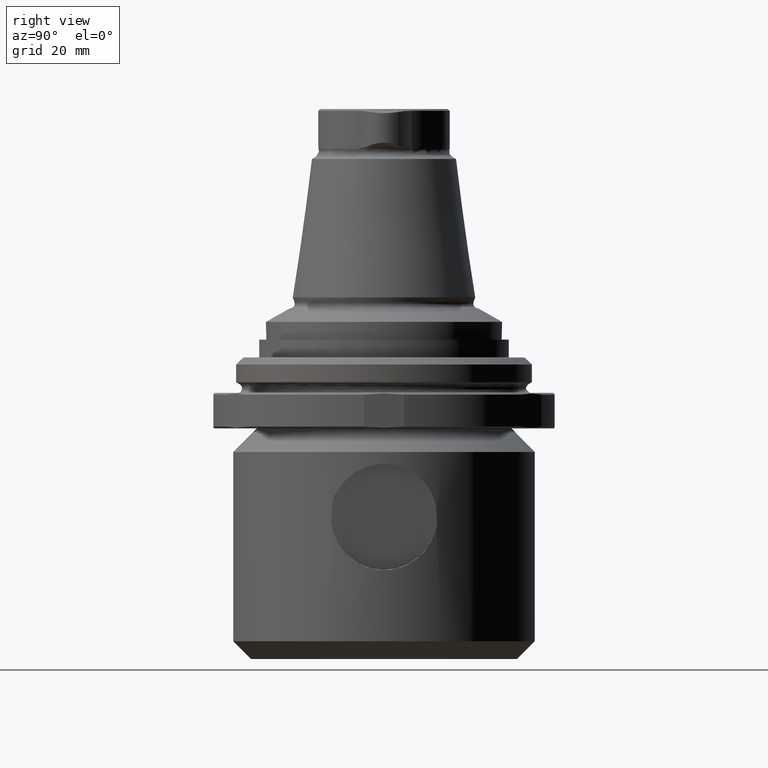
[diagram: clean part render]
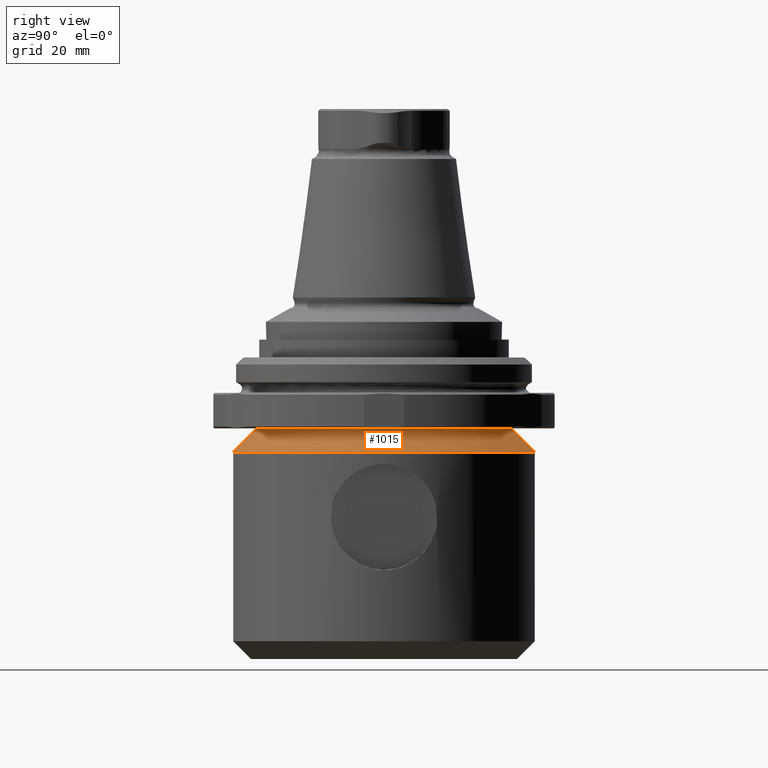
[diagram: same view with one face highlighted and labeled with its STEP entity id]
A machine part, right view. The second image highlights one B-rep face of the part: STEP entity #1015.
In plain terms, the highlighted conical surface has half-angle 45 deg.
Its self-contained STEP definition (entity closure, byte-faithful):
#158=CONICAL_SURFACE('',#1148,25.5,0.785398163397447);
#400=ORIENTED_EDGE('',*,*,#552,.T.);
#401=ORIENTED_EDGE('',*,*,#553,.F.);
#552=EDGE_CURVE('',#653,#653,#716,.T.);
#553=EDGE_CURVE('',#654,#654,#717,.T.);
#653=VERTEX_POINT('',#1851);
#654=VERTEX_POINT('',#1854);
#716=CIRCLE('',#1147,21.5);
#717=CIRCLE('',#1149,25.5);
#807=EDGE_LOOP('',(#400));
#808=EDGE_LOOP('',(#401));
#907=FACE_BOUND('',#807,.T.);
#908=FACE_BOUND('',#808,.T.);
#1015=ADVANCED_FACE('',(#907,#908),#158,.T.);
#1147=AXIS2_PLACEMENT_3D('',#1850,#1415,#1416);
#1148=AXIS2_PLACEMENT_3D('',#1852,#1417,#1418);
#1149=AXIS2_PLACEMENT_3D('',#1853,#1419,#1420);
#1415=DIRECTION('',(-5.47430718319515E-16,-8.51929311524195E-24,-1.));
#1416=DIRECTION('',(-6.38378239159465E-16,1.,-3.83055215771257E-23));
#1417=DIRECTION('',(-5.47430718319515E-16,-8.51929311524195E-24,-1.));
#1418=DIRECTION('',(-6.38378239159465E-16,1.,-3.83055215771257E-23));
#1419=DIRECTION('',(-5.47430718319515E-16,-8.51929311524195E-24,-1.));
#1420=DIRECTION('',(-6.38378239159465E-16,1.,-3.83055215771257E-23));
#1850=CARTESIAN_POINT('',(-9.75959004612062E-14,-9.81645352109707E-14,-6.99999999999999));
#1851=CARTESIAN_POINT('',(-1.11321032603135E-13,21.4999999999999,-6.99999999999999));
#1852=CARTESIAN_POINT('',(-9.97856233344843E-14,-9.81645352450479E-14,-11.));
#1853=CARTESIAN_POINT('',(-9.97856233344843E-14,-9.81645352450479E-14,-11.));
#1854=CARTESIAN_POINT('',(-1.16064268433051E-13,25.4999999999999,-11.));